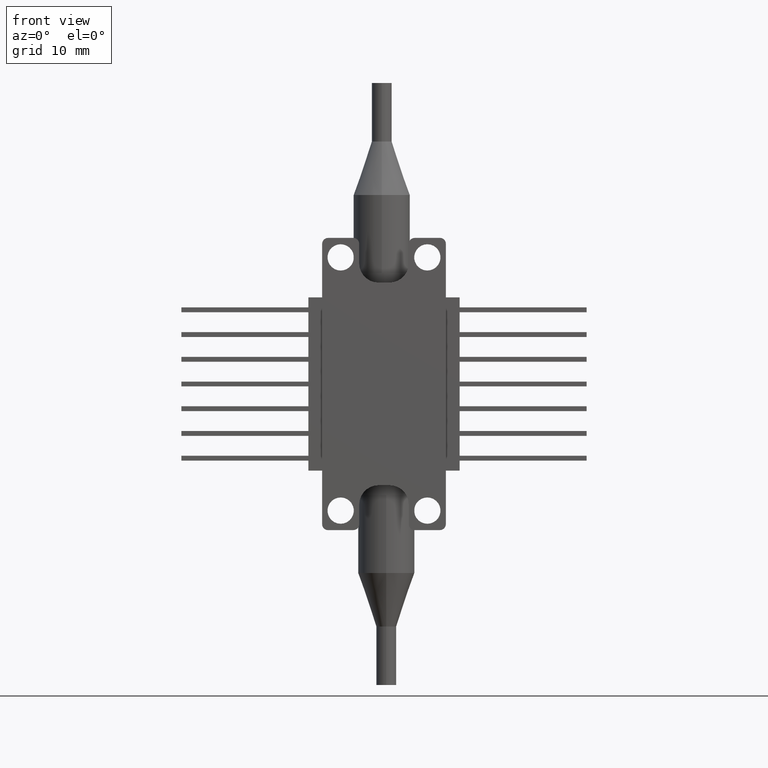
[diagram: clean part render]
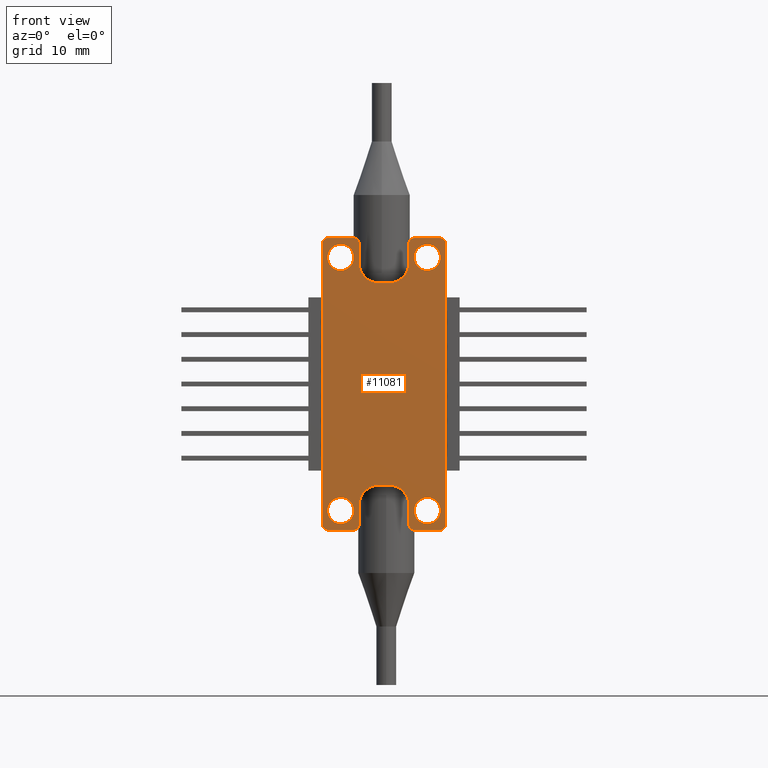
[diagram: same view with one face highlighted and labeled with its STEP entity id]
A machine part, front view. The second image highlights one B-rep face of the part: STEP entity #11081.
In plain terms, the highlighted planar face has unit normal (0, 1, 0).
Its self-contained STEP definition (entity closure, byte-faithful):
#13 = CARTESIAN_POINT ( 'NONE',  ( -106.9601848420183074, 14.50485114794376429, 56.09721449318330855 ) ) ;
#14 = VERTEX_POINT ( 'NONE', #6565 ) ;
#48 = CIRCLE ( 'NONE', #2872, 1.999999999999998224 ) ;
#118 = CIRCLE ( 'NONE', #10747, 1.350000000000000533 ) ;
#129 = ORIENTED_EDGE ( 'NONE', *, *, #14419, .T. ) ;
#163 = CARTESIAN_POINT ( 'NONE',  ( -109.5601848420182876, 14.50485114794376429, 56.69721449318330997 ) ) ;
#247 = LINE ( 'NONE', #13742, #11274 ) ;
#306 = EDGE_CURVE ( 'NONE', #3803, #8036, #1268, .T. ) ;
#362 = DIRECTION ( 'NONE',  ( 0.0000000000000000000, 0.0000000000000000000, 1.000000000000000000 ) ) ;
#541 = CARTESIAN_POINT ( 'NONE',  ( -110.1601848420182961, 14.50485114794376429, 26.69721449318330642 ) ) ;
#571 = CARTESIAN_POINT ( 'NONE',  ( -98.06018484201830177, 14.50485114794376429, 26.69721449318330642 ) ) ;
#575 = VECTOR ( 'NONE', #956, 1000.000000000000000 ) ;
#631 = DIRECTION ( 'NONE',  ( 0.0000000000000000000, 1.000000000000000000, 0.0000000000000000000 ) ) ;
#772 = CARTESIAN_POINT ( 'NONE',  ( -104.3601848420182989, 14.50485114794376429, 31.29721449318330428 ) ) ;
#903 = AXIS2_PLACEMENT_3D ( 'NONE', #7759, #9427, #2644 ) ;
#956 = DIRECTION ( 'NONE',  ( 1.000000000000000000, -0.0000000000000000000, 0.0000000000000000000 ) ) ;
#1099 = EDGE_CURVE ( 'NONE', #20583, #10372, #6723, .T. ) ;
#1139 = CARTESIAN_POINT ( 'NONE',  ( -98.06018484201830177, 14.50485114794376429, 27.29721449318330784 ) ) ;
#1171 = CIRCLE ( 'NONE', #10483, 1.349999999999996980 ) ;
#1189 = CIRCLE ( 'NONE', #20165, 1.350000000000000533 ) ;
#1196 = AXIS2_PLACEMENT_3D ( 'NONE', #6225, #17936, #19377 ) ;
#1268 = CIRCLE ( 'NONE', #12685, 1.350000000000004086 ) ;
#1342 = VERTEX_POINT ( 'NONE', #17748 ) ;
#1496 = CARTESIAN_POINT ( 'NONE',  ( -106.9601848420183074, 14.50485114794376429, 27.29721449318330784 ) ) ;
#1620 = LINE ( 'NONE', #2839, #575 ) ;
#1651 = VERTEX_POINT ( 'NONE', #1655 ) ;
#1655 = CARTESIAN_POINT ( 'NONE',  ( -110.1601848420182961, 14.50485114794376429, 27.29721449318330784 ) ) ;
#1768 = AXIS2_PLACEMENT_3D ( 'NONE', #13, #20163, #18554 ) ;
#1826 = DIRECTION ( 'NONE',  ( -0.0000000000000000000, -1.000000000000000000, -0.0000000000000000000 ) ) ;
#1848 = EDGE_CURVE ( 'NONE', #14002, #12466, #19296, .T. ) ;
#1943 = VERTEX_POINT ( 'NONE', #163 ) ;
#2015 = DIRECTION ( 'NONE',  ( 0.0000000000000000000, -0.0000000000000000000, 1.000000000000000000 ) ) ;
#2082 = CARTESIAN_POINT ( 'NONE',  ( -108.2601848420183046, 14.50485114794376429, 28.69721449318330642 ) ) ;
#2096 = CARTESIAN_POINT ( 'NONE',  ( -101.2601848420183046, 14.50485114794376429, 56.09721449318330855 ) ) ;
#2181 = VECTOR ( 'NONE', #9363, 1000.000000000000000 ) ;
#2271 = CARTESIAN_POINT ( 'NONE',  ( -101.2601848420183046, 14.50485114794376429, 56.69721449318330997 ) ) ;
#2456 = DIRECTION ( 'NONE',  ( 1.000000000000000000, 0.0000000000000000000, 0.0000000000000000000 ) ) ;
#2463 = CARTESIAN_POINT ( 'NONE',  ( -97.46018484201829324, 14.50485114794376429, 56.69721449318330997 ) ) ;
#2528 = EDGE_CURVE ( 'NONE', #8742, #3491, #20782, .T. ) ;
#2644 = DIRECTION ( 'NONE',  ( 0.0000000000000000000, 0.0000000000000000000, 1.000000000000000000 ) ) ;
#2651 = AXIS2_PLACEMENT_3D ( 'NONE', #15394, #7050, #362 ) ;
#2827 = DIRECTION ( 'NONE',  ( 0.0000000000000000000, 0.0000000000000000000, 1.000000000000000000 ) ) ;
#2839 = CARTESIAN_POINT ( 'NONE',  ( -110.1601848420182961, 14.50485114794376429, 31.29721449318330428 ) ) ;
#2872 = AXIS2_PLACEMENT_3D ( 'NONE', #19054, #19200, #7552 ) ;
#2939 = VECTOR ( 'NONE', #20370, 1000.000000000000000 ) ;
#2956 = CARTESIAN_POINT ( 'NONE',  ( -108.2601848420183046, 14.50485114794376429, 27.34721449318330500 ) ) ;
#2974 = LINE ( 'NONE', #541, #17082 ) ;
#2993 = EDGE_LOOP ( 'NONE', ( #10416, #10895 ) ) ;
#3064 = AXIS2_PLACEMENT_3D ( 'NONE', #8376, #13171, #13444 ) ;
#3092 = VERTEX_POINT ( 'NONE', #3484 ) ;
#3339 = CIRCLE ( 'NONE', #8807, 1.349999999999996980 ) ;
#3484 = CARTESIAN_POINT ( 'NONE',  ( -99.36018484201831313, 14.50485114794376429, 53.34721449318330855 ) ) ;
#3491 = VERTEX_POINT ( 'NONE', #15027 ) ;
#3525 = DIRECTION ( 'NONE',  ( 0.0000000000000000000, 0.0000000000000000000, 1.000000000000000000 ) ) ;
#3717 = CARTESIAN_POINT ( 'NONE',  ( -104.3601848420182989, 14.50485114794376429, 52.09721449318330144 ) ) ;
#3803 = VERTEX_POINT ( 'NONE', #14940 ) ;
#3827 = ORIENTED_EDGE ( 'NONE', *, *, #7394, .T. ) ;
#3907 = EDGE_CURVE ( 'NONE', #18228, #20583, #13370, .T. ) ;
#3919 = CIRCLE ( 'NONE', #903, 0.6000000000000033085 ) ;
#3955 = CIRCLE ( 'NONE', #14987, 0.5999999999999998668 ) ;
#4009 = CIRCLE ( 'NONE', #20783, 0.5999999999999998668 ) ;
#4012 = EDGE_CURVE ( 'NONE', #8036, #3803, #4700, .T. ) ;
#4143 = EDGE_CURVE ( 'NONE', #1943, #14, #3919, .T. ) ;
#4257 = DIRECTION ( 'NONE',  ( 0.0000000000000000000, 0.0000000000000000000, 1.000000000000000000 ) ) ;
#4281 = VERTEX_POINT ( 'NONE', #4716 ) ;
#4413 = VECTOR ( 'NONE', #5749, 1000.000000000000000 ) ;
#4423 = LINE ( 'NONE', #2463, #17272 ) ;
#4533 = EDGE_CURVE ( 'NONE', #1943, #12466, #8878, .T. ) ;
#4562 = VERTEX_POINT ( 'NONE', #12572 ) ;
#4700 = CIRCLE ( 'NONE', #15916, 1.350000000000004086 ) ;
#4716 = CARTESIAN_POINT ( 'NONE',  ( -98.06018484201830177, 14.50485114794376429, 56.69721449318330997 ) ) ;
#4771 = VECTOR ( 'NONE', #5769, 1000.000000000000000 ) ;
#4780 = DIRECTION ( 'NONE',  ( 1.000000000000000000, 0.0000000000000000000, 0.0000000000000000000 ) ) ;
#4821 = DIRECTION ( 'NONE',  ( 0.0000000000000000000, 0.0000000000000000000, 1.000000000000000000 ) ) ;
#4888 = EDGE_CURVE ( 'NONE', #11331, #18228, #20386, .T. ) ;
#4958 = CARTESIAN_POINT ( 'NONE',  ( -97.46018484201829324, 14.50485114794376429, 56.09721449318330855 ) ) ;
#5037 = ORIENTED_EDGE ( 'NONE', *, *, #8348, .T. ) ;
#5304 = VECTOR ( 'NONE', #21026, 1000.000000000000000 ) ;
#5355 = ORIENTED_EDGE ( 'NONE', *, *, #4012, .T. ) ;
#5422 = CARTESIAN_POINT ( 'NONE',  ( -108.2601848420183046, 14.50485114794376429, 28.69721449318330642 ) ) ;
#5582 = CARTESIAN_POINT ( 'NONE',  ( -103.2601848420183046, 14.50485114794376429, 52.09721449318330144 ) ) ;
#5666 = CARTESIAN_POINT ( 'NONE',  ( -100.6601848420182961, 14.50485114794376429, 26.69721449318330642 ) ) ;
#5708 = CARTESIAN_POINT ( 'NONE',  ( -106.3601848420182989, 14.50485114794376429, 56.69721449318330997 ) ) ;
#5749 = DIRECTION ( 'NONE',  ( 1.000000000000000000, 0.0000000000000000000, 0.0000000000000000000 ) ) ;
#5751 = CARTESIAN_POINT ( 'NONE',  ( -100.6601848420182961, 14.50485114794376429, 56.09721449318330855 ) ) ;
#5769 = DIRECTION ( 'NONE',  ( -0.0000000000000000000, 0.0000000000000000000, -1.000000000000000000 ) ) ;
#5991 = ORIENTED_EDGE ( 'NONE', *, *, #17050, .T. ) ;
#6052 = DIRECTION ( 'NONE',  ( 0.0000000000000000000, 1.000000000000000000, 0.0000000000000000000 ) ) ;
#6084 = AXIS2_PLACEMENT_3D ( 'NONE', #1496, #19740, #13215 ) ;
#6100 = ORIENTED_EDGE ( 'NONE', *, *, #21763, .T. ) ;
#6170 = ORIENTED_EDGE ( 'NONE', *, *, #4533, .F. ) ;
#6225 = CARTESIAN_POINT ( 'NONE',  ( -104.3601848420182989, 14.50485114794376429, 29.29721449318330428 ) ) ;
#6317 = VECTOR ( 'NONE', #19055, 1000.000000000000000 ) ;
#6374 = VERTEX_POINT ( 'NONE', #3717 ) ;
#6532 = DIRECTION ( 'NONE',  ( 0.0000000000000000000, 0.0000000000000000000, 1.000000000000000000 ) ) ;
#6543 = ORIENTED_EDGE ( 'NONE', *, *, #4888, .T. ) ;
#6565 = CARTESIAN_POINT ( 'NONE',  ( -110.1601848420182961, 14.50485114794376429, 56.09721449318330855 ) ) ;
#6598 = EDGE_LOOP ( 'NONE', ( #18738, #5037, #15795, #14611, #13283, #129, #6100, #14775, #6170, #7176, #10097, #11401, #7253, #6543, #19741, #7698, #15738, #15481, #16400, #3827, #16687, #19737, #21582, #7512 ) ) ;
#6723 = CIRCLE ( 'NONE', #1196, 1.999999999999998224 ) ;
#6858 = VERTEX_POINT ( 'NONE', #14245 ) ;
#6883 = DIRECTION ( 'NONE',  ( 0.0000000000000000000, 0.0000000000000000000, 1.000000000000000000 ) ) ;
#6893 = VECTOR ( 'NONE', #4780, 1000.000000000000000 ) ;
#6912 = CARTESIAN_POINT ( 'NONE',  ( -106.3601848420182989, 14.50485114794376429, 29.29721449318330428 ) ) ;
#7013 = CIRCLE ( 'NONE', #16708, 1.350000000000000533 ) ;
#7050 = DIRECTION ( 'NONE',  ( -0.0000000000000000000, -1.000000000000000000, -0.0000000000000000000 ) ) ;
#7071 = EDGE_CURVE ( 'NONE', #15639, #20809, #1189, .T. ) ;
#7122 = AXIS2_PLACEMENT_3D ( 'NONE', #9599, #11301, #16069 ) ;
#7176 = ORIENTED_EDGE ( 'NONE', *, *, #4143, .T. ) ;
#7253 = ORIENTED_EDGE ( 'NONE', *, *, #15103, .T. ) ;
#7394 = EDGE_CURVE ( 'NONE', #3491, #21173, #19272, .T. ) ;
#7512 = ORIENTED_EDGE ( 'NONE', *, *, #13192, .T. ) ;
#7538 = CARTESIAN_POINT ( 'NONE',  ( -108.2601848420183046, 14.50485114794376429, 54.69721449318330997 ) ) ;
#7552 = DIRECTION ( 'NONE',  ( 0.0000000000000000000, 0.0000000000000000000, 1.000000000000000000 ) ) ;
#7629 = VERTEX_POINT ( 'NONE', #4958 ) ;
#7698 = ORIENTED_EDGE ( 'NONE', *, *, #1099, .T. ) ;
#7759 = CARTESIAN_POINT ( 'NONE',  ( -109.5601848420182876, 14.50485114794376429, 56.09721449318330855 ) ) ;
#7830 = EDGE_CURVE ( 'NONE', #21099, #6374, #8984, .T. ) ;
#7868 = VECTOR ( 'NONE', #20517, 1000.000000000000000 ) ;
#7913 = EDGE_CURVE ( 'NONE', #10372, #20081, #1620, .T. ) ;
#7991 = DIRECTION ( 'NONE',  ( 0.0000000000000000000, 1.000000000000000000, 0.0000000000000000000 ) ) ;
#8036 = VERTEX_POINT ( 'NONE', #13246 ) ;
#8281 = DIRECTION ( 'NONE',  ( 0.0000000000000000000, 1.000000000000000000, 0.0000000000000000000 ) ) ;
#8348 = EDGE_CURVE ( 'NONE', #1342, #11053, #14435, .T. ) ;
#8376 = CARTESIAN_POINT ( 'NONE',  ( -104.3601848420182989, 14.50485114794376429, 54.09721449318330144 ) ) ;
#8417 = EDGE_LOOP ( 'NONE', ( #15607, #20767 ) ) ;
#8450 = EDGE_CURVE ( 'NONE', #16087, #10636, #3955, .T. ) ;
#8617 = EDGE_CURVE ( 'NONE', #1342, #4281, #247, .T. ) ;
#8711 = DIRECTION ( 'NONE',  ( 0.0000000000000000000, 1.000000000000000000, 0.0000000000000000000 ) ) ;
#8742 = VERTEX_POINT ( 'NONE', #18936 ) ;
#8797 = ORIENTED_EDGE ( 'NONE', *, *, #7071, .T. ) ;
#8807 = AXIS2_PLACEMENT_3D ( 'NONE', #18949, #631, #15640 ) ;
#8878 = LINE ( 'NONE', #19101, #4413 ) ;
#8984 = LINE ( 'NONE', #18975, #2181 ) ;
#9275 = CARTESIAN_POINT ( 'NONE',  ( -108.2601848420183046, 14.50485114794376429, 54.69721449318330997 ) ) ;
#9363 = DIRECTION ( 'NONE',  ( -1.000000000000000000, 0.0000000000000000000, 0.0000000000000000000 ) ) ;
#9427 = DIRECTION ( 'NONE',  ( -0.0000000000000000000, -1.000000000000000000, -0.0000000000000000000 ) ) ;
#9494 = DIRECTION ( 'NONE',  ( -0.0000000000000000000, -0.0000000000000000000, -1.000000000000000000 ) ) ;
#9599 = CARTESIAN_POINT ( 'NONE',  ( -103.2601848420183046, 14.50485114794376429, 54.09721449318330144 ) ) ;
#10097 = ORIENTED_EDGE ( 'NONE', *, *, #13365, .T. ) ;
#10099 = CARTESIAN_POINT ( 'NONE',  ( -106.3601848420182989, 14.50485114794376429, 56.09721449318330855 ) ) ;
#10189 = DIRECTION ( 'NONE',  ( 0.0000000000000000000, 0.0000000000000000000, 1.000000000000000000 ) ) ;
#10238 = LINE ( 'NONE', #5708, #6317 ) ;
#10283 = LINE ( 'NONE', #12678, #5304 ) ;
#10351 = CARTESIAN_POINT ( 'NONE',  ( -110.1601848420182961, 14.50485114794376429, 56.69721449318330997 ) ) ;
#10372 = VERTEX_POINT ( 'NONE', #772 ) ;
#10416 = ORIENTED_EDGE ( 'NONE', *, *, #12867, .T. ) ;
#10465 = FACE_BOUND ( 'NONE', #20430, .T. ) ;
#10483 = AXIS2_PLACEMENT_3D ( 'NONE', #21637, #8281, #6532 ) ;
#10621 = CARTESIAN_POINT ( 'NONE',  ( -106.3601848420182989, 14.50485114794376429, 56.69721449318330997 ) ) ;
#10636 = VERTEX_POINT ( 'NONE', #15396 ) ;
#10648 = AXIS2_PLACEMENT_3D ( 'NONE', #5751, #17694, #14156 ) ;
#10730 = FACE_BOUND ( 'NONE', #2993, .T. ) ;
#10747 = AXIS2_PLACEMENT_3D ( 'NONE', #14397, #6052, #2827 ) ;
#10895 = ORIENTED_EDGE ( 'NONE', *, *, #20310, .T. ) ;
#11053 = VERTEX_POINT ( 'NONE', #2096 ) ;
#11081 = ADVANCED_FACE ( 'NONE', ( #17540, #15170, #10465, #19136, #10730 ), #13640, .F. ) ;
#11200 = EDGE_CURVE ( 'NONE', #7629, #10636, #4423, .T. ) ;
#11274 = VECTOR ( 'NONE', #19515, 1000.000000000000000 ) ;
#11301 = DIRECTION ( 'NONE',  ( 0.0000000000000000000, 1.000000000000000000, 0.0000000000000000000 ) ) ;
#11331 = VERTEX_POINT ( 'NONE', #20634 ) ;
#11401 = ORIENTED_EDGE ( 'NONE', *, *, #15365, .T. ) ;
#11576 = VERTEX_POINT ( 'NONE', #21482 ) ;
#11783 = DIRECTION ( 'NONE',  ( 0.0000000000000000000, 0.0000000000000000000, 1.000000000000000000 ) ) ;
#11905 = AXIS2_PLACEMENT_3D ( 'NONE', #18024, #7991, #14659 ) ;
#12466 = VERTEX_POINT ( 'NONE', #18564 ) ;
#12549 = AXIS2_PLACEMENT_3D ( 'NONE', #10351, #13575, #2015 ) ;
#12570 = CARTESIAN_POINT ( 'NONE',  ( -99.36018484201831313, 14.50485114794376429, 30.04721449318330428 ) ) ;
#12572 = CARTESIAN_POINT ( 'NONE',  ( -106.3601848420182989, 14.50485114794376429, 54.09721449318330144 ) ) ;
#12577 = DIRECTION ( 'NONE',  ( 0.0000000000000000000, 1.000000000000000000, 0.0000000000000000000 ) ) ;
#12678 = CARTESIAN_POINT ( 'NONE',  ( -110.1601848420182961, 14.50485114794376429, 56.69721449318330997 ) ) ;
#12685 = AXIS2_PLACEMENT_3D ( 'NONE', #7538, #12577, #4257 ) ;
#12785 = DIRECTION ( 'NONE',  ( 0.0000000000000000000, 0.0000000000000000000, 1.000000000000000000 ) ) ;
#12867 = EDGE_CURVE ( 'NONE', #11576, #3092, #1171, .T. ) ;
#13171 = DIRECTION ( 'NONE',  ( 0.0000000000000000000, 1.000000000000000000, 0.0000000000000000000 ) ) ;
#13192 = EDGE_CURVE ( 'NONE', #7629, #4281, #19516, .T. ) ;
#13215 = DIRECTION ( 'NONE',  ( 0.0000000000000000000, 0.0000000000000000000, 1.000000000000000000 ) ) ;
#13246 = CARTESIAN_POINT ( 'NONE',  ( -108.2601848420183046, 14.50485114794376429, 53.34721449318330144 ) ) ;
#13283 = ORIENTED_EDGE ( 'NONE', *, *, #7830, .T. ) ;
#13365 = EDGE_CURVE ( 'NONE', #14, #1651, #10283, .T. ) ;
#13370 = LINE ( 'NONE', #10621, #7868 ) ;
#13380 = CARTESIAN_POINT ( 'NONE',  ( -109.5601848420182876, 14.50485114794376429, 26.69721449318330642 ) ) ;
#13398 = EDGE_CURVE ( 'NONE', #21173, #16087, #15820, .T. ) ;
#13399 = CARTESIAN_POINT ( 'NONE',  ( -109.5601848420182876, 14.50485114794376429, 27.29721449318330784 ) ) ;
#13444 = DIRECTION ( 'NONE',  ( 0.0000000000000000000, 0.0000000000000000000, 1.000000000000000000 ) ) ;
#13575 = DIRECTION ( 'NONE',  ( 0.0000000000000000000, 1.000000000000000000, 0.0000000000000000000 ) ) ;
#13640 = PLANE ( 'NONE',  #12549 ) ;
#13742 = CARTESIAN_POINT ( 'NONE',  ( -110.1601848420182961, 14.50485114794376429, 56.69721449318330997 ) ) ;
#14002 = VERTEX_POINT ( 'NONE', #10099 ) ;
#14156 = DIRECTION ( 'NONE',  ( 0.0000000000000000000, 0.0000000000000000000, 1.000000000000000000 ) ) ;
#14245 = CARTESIAN_POINT ( 'NONE',  ( -99.36018484201831313, 14.50485114794376429, 27.34721449318330500 ) ) ;
#14397 = CARTESIAN_POINT ( 'NONE',  ( -99.36018484201831313, 14.50485114794376429, 28.69721449318330642 ) ) ;
#14419 = EDGE_CURVE ( 'NONE', #6374, #4562, #15843, .T. ) ;
#14435 = CIRCLE ( 'NONE', #10648, 0.6000000000000033085 ) ;
#14611 = ORIENTED_EDGE ( 'NONE', *, *, #18895, .T. ) ;
#14659 = DIRECTION ( 'NONE',  ( 0.0000000000000000000, 0.0000000000000000000, 1.000000000000000000 ) ) ;
#14775 = ORIENTED_EDGE ( 'NONE', *, *, #1848, .T. ) ;
#14940 = CARTESIAN_POINT ( 'NONE',  ( -108.2601848420183046, 14.50485114794376429, 56.04721449318331139 ) ) ;
#14987 = AXIS2_PLACEMENT_3D ( 'NONE', #1139, #16074, #12785 ) ;
#15007 = CIRCLE ( 'NONE', #11905, 1.350000000000000533 ) ;
#15027 = CARTESIAN_POINT ( 'NONE',  ( -101.2601848420183046, 14.50485114794376429, 27.29721449318330784 ) ) ;
#15103 = EDGE_CURVE ( 'NONE', #19735, #11331, #2974, .T. ) ;
#15170 = FACE_BOUND ( 'NONE', #8417, .T. ) ;
#15295 = CARTESIAN_POINT ( 'NONE',  ( -106.3601848420182989, 14.50485114794376429, 27.29721449318330784 ) ) ;
#15301 = EDGE_CURVE ( 'NONE', #6858, #18851, #15007, .T. ) ;
#15365 = EDGE_CURVE ( 'NONE', #1651, #19735, #4009, .T. ) ;
#15394 = CARTESIAN_POINT ( 'NONE',  ( -98.06018484201830177, 14.50485114794376429, 56.09721449318330855 ) ) ;
#15396 = CARTESIAN_POINT ( 'NONE',  ( -97.46018484201829324, 14.50485114794376429, 27.29721449318330784 ) ) ;
#15481 = ORIENTED_EDGE ( 'NONE', *, *, #18409, .T. ) ;
#15607 = ORIENTED_EDGE ( 'NONE', *, *, #17723, .T. ) ;
#15639 = VERTEX_POINT ( 'NONE', #19579 ) ;
#15640 = DIRECTION ( 'NONE',  ( 0.0000000000000000000, 0.0000000000000000000, 1.000000000000000000 ) ) ;
#15738 = ORIENTED_EDGE ( 'NONE', *, *, #7913, .T. ) ;
#15795 = ORIENTED_EDGE ( 'NONE', *, *, #18379, .T. ) ;
#15820 = LINE ( 'NONE', #18344, #6893 ) ;
#15843 = CIRCLE ( 'NONE', #3064, 2.000000000000001776 ) ;
#15916 = AXIS2_PLACEMENT_3D ( 'NONE', #9275, #17741, #6883 ) ;
#15948 = EDGE_LOOP ( 'NONE', ( #17631, #5355 ) ) ;
#16069 = DIRECTION ( 'NONE',  ( 0.0000000000000000000, 0.0000000000000000000, 1.000000000000000000 ) ) ;
#16074 = DIRECTION ( 'NONE',  ( -0.0000000000000000000, -1.000000000000000000, -0.0000000000000000000 ) ) ;
#16087 = VERTEX_POINT ( 'NONE', #571 ) ;
#16191 = VERTEX_POINT ( 'NONE', #18970 ) ;
#16255 = CARTESIAN_POINT ( 'NONE',  ( -100.6601848420182961, 14.50485114794376429, 27.29721449318330784 ) ) ;
#16294 = CARTESIAN_POINT ( 'NONE',  ( -103.2601848420183046, 14.50485114794376429, 31.29721449318330428 ) ) ;
#16400 = ORIENTED_EDGE ( 'NONE', *, *, #2528, .T. ) ;
#16687 = ORIENTED_EDGE ( 'NONE', *, *, #13398, .T. ) ;
#16708 = AXIS2_PLACEMENT_3D ( 'NONE', #5422, #8711, #3525 ) ;
#16978 = CARTESIAN_POINT ( 'NONE',  ( -101.2601848420183046, 14.50485114794376429, 56.69721449318330997 ) ) ;
#17050 = EDGE_CURVE ( 'NONE', #20809, #15639, #7013, .T. ) ;
#17082 = VECTOR ( 'NONE', #2456, 1000.000000000000000 ) ;
#17148 = DIRECTION ( 'NONE',  ( 0.0000000000000000000, 1.000000000000000000, 0.0000000000000000000 ) ) ;
#17272 = VECTOR ( 'NONE', #9494, 1000.000000000000000 ) ;
#17540 = FACE_OUTER_BOUND ( 'NONE', #6598, .T. ) ;
#17631 = ORIENTED_EDGE ( 'NONE', *, *, #306, .T. ) ;
#17694 = DIRECTION ( 'NONE',  ( -0.0000000000000000000, -1.000000000000000000, -0.0000000000000000000 ) ) ;
#17723 = EDGE_CURVE ( 'NONE', #18851, #6858, #118, .T. ) ;
#17741 = DIRECTION ( 'NONE',  ( 0.0000000000000000000, 1.000000000000000000, 0.0000000000000000000 ) ) ;
#17748 = CARTESIAN_POINT ( 'NONE',  ( -100.6601848420182961, 14.50485114794376429, 56.69721449318330997 ) ) ;
#17878 = LINE ( 'NONE', #2271, #4771 ) ;
#17936 = DIRECTION ( 'NONE',  ( 0.0000000000000000000, 1.000000000000000000, 0.0000000000000000000 ) ) ;
#18024 = CARTESIAN_POINT ( 'NONE',  ( -99.36018484201831313, 14.50485114794376429, 28.69721449318330642 ) ) ;
#18228 = VERTEX_POINT ( 'NONE', #15295 ) ;
#18344 = CARTESIAN_POINT ( 'NONE',  ( -110.1601848420182961, 14.50485114794376429, 26.69721449318330642 ) ) ;
#18379 = EDGE_CURVE ( 'NONE', #11053, #16191, #17878, .T. ) ;
#18409 = EDGE_CURVE ( 'NONE', #20081, #8742, #48, .T. ) ;
#18554 = DIRECTION ( 'NONE',  ( 0.0000000000000000000, 0.0000000000000000000, 1.000000000000000000 ) ) ;
#18564 = CARTESIAN_POINT ( 'NONE',  ( -106.9601848420183074, 14.50485114794376429, 56.69721449318330997 ) ) ;
#18738 = ORIENTED_EDGE ( 'NONE', *, *, #8617, .F. ) ;
#18851 = VERTEX_POINT ( 'NONE', #12570 ) ;
#18895 = EDGE_CURVE ( 'NONE', #16191, #21099, #20461, .T. ) ;
#18936 = CARTESIAN_POINT ( 'NONE',  ( -101.2601848420183046, 14.50485114794376429, 29.29721449318330428 ) ) ;
#18949 = CARTESIAN_POINT ( 'NONE',  ( -99.36018484201831313, 14.50485114794376429, 54.69721449318330997 ) ) ;
#18970 = CARTESIAN_POINT ( 'NONE',  ( -101.2601848420183046, 14.50485114794376429, 54.09721449318330144 ) ) ;
#18975 = CARTESIAN_POINT ( 'NONE',  ( -110.1601848420182961, 14.50485114794376429, 52.09721449318330144 ) ) ;
#19054 = CARTESIAN_POINT ( 'NONE',  ( -103.2601848420183046, 14.50485114794376429, 29.29721449318330428 ) ) ;
#19055 = DIRECTION ( 'NONE',  ( 0.0000000000000000000, -0.0000000000000000000, 1.000000000000000000 ) ) ;
#19071 = AXIS2_PLACEMENT_3D ( 'NONE', #16255, #19718, #4821 ) ;
#19101 = CARTESIAN_POINT ( 'NONE',  ( -110.1601848420182961, 14.50485114794376429, 56.69721449318330997 ) ) ;
#19136 = FACE_BOUND ( 'NONE', #15948, .T. ) ;
#19200 = DIRECTION ( 'NONE',  ( 0.0000000000000000000, 1.000000000000000000, 0.0000000000000000000 ) ) ;
#19272 = CIRCLE ( 'NONE', #19071, 0.5999999999999998668 ) ;
#19296 = CIRCLE ( 'NONE', #1768, 0.6000000000000033085 ) ;
#19377 = DIRECTION ( 'NONE',  ( 0.0000000000000000000, 0.0000000000000000000, 1.000000000000000000 ) ) ;
#19515 = DIRECTION ( 'NONE',  ( 1.000000000000000000, 0.0000000000000000000, 0.0000000000000000000 ) ) ;
#19516 = CIRCLE ( 'NONE', #2651, 0.6000000000000033085 ) ;
#19579 = CARTESIAN_POINT ( 'NONE',  ( -108.2601848420183046, 14.50485114794376429, 30.04721449318330428 ) ) ;
#19718 = DIRECTION ( 'NONE',  ( -0.0000000000000000000, -1.000000000000000000, -0.0000000000000000000 ) ) ;
#19735 = VERTEX_POINT ( 'NONE', #13380 ) ;
#19737 = ORIENTED_EDGE ( 'NONE', *, *, #8450, .T. ) ;
#19740 = DIRECTION ( 'NONE',  ( -0.0000000000000000000, -1.000000000000000000, -0.0000000000000000000 ) ) ;
#19741 = ORIENTED_EDGE ( 'NONE', *, *, #3907, .T. ) ;
#20081 = VERTEX_POINT ( 'NONE', #16294 ) ;
#20163 = DIRECTION ( 'NONE',  ( -0.0000000000000000000, -1.000000000000000000, -0.0000000000000000000 ) ) ;
#20165 = AXIS2_PLACEMENT_3D ( 'NONE', #2082, #17148, #10189 ) ;
#20310 = EDGE_CURVE ( 'NONE', #3092, #11576, #3339, .T. ) ;
#20370 = DIRECTION ( 'NONE',  ( 1.885568995626963301E-16, 0.0000000000000000000, -1.000000000000000000 ) ) ;
#20386 = CIRCLE ( 'NONE', #6084, 0.5999999999999998668 ) ;
#20430 = EDGE_LOOP ( 'NONE', ( #8797, #5991 ) ) ;
#20461 = CIRCLE ( 'NONE', #7122, 2.000000000000001776 ) ;
#20517 = DIRECTION ( 'NONE',  ( 0.0000000000000000000, -0.0000000000000000000, 1.000000000000000000 ) ) ;
#20583 = VERTEX_POINT ( 'NONE', #6912 ) ;
#20634 = CARTESIAN_POINT ( 'NONE',  ( -106.9601848420183074, 14.50485114794376429, 26.69721449318330642 ) ) ;
#20767 = ORIENTED_EDGE ( 'NONE', *, *, #15301, .T. ) ;
#20782 = LINE ( 'NONE', #16978, #2939 ) ;
#20783 = AXIS2_PLACEMENT_3D ( 'NONE', #13399, #1826, #11783 ) ;
#20809 = VERTEX_POINT ( 'NONE', #2956 ) ;
#21026 = DIRECTION ( 'NONE',  ( -0.0000000000000000000, -0.0000000000000000000, -1.000000000000000000 ) ) ;
#21099 = VERTEX_POINT ( 'NONE', #5582 ) ;
#21173 = VERTEX_POINT ( 'NONE', #5666 ) ;
#21482 = CARTESIAN_POINT ( 'NONE',  ( -99.36018484201831313, 14.50485114794376429, 56.04721449318330428 ) ) ;
#21582 = ORIENTED_EDGE ( 'NONE', *, *, #11200, .F. ) ;
#21637 = CARTESIAN_POINT ( 'NONE',  ( -99.36018484201831313, 14.50485114794376429, 54.69721449318330997 ) ) ;
#21763 = EDGE_CURVE ( 'NONE', #4562, #14002, #10238, .T. ) ;